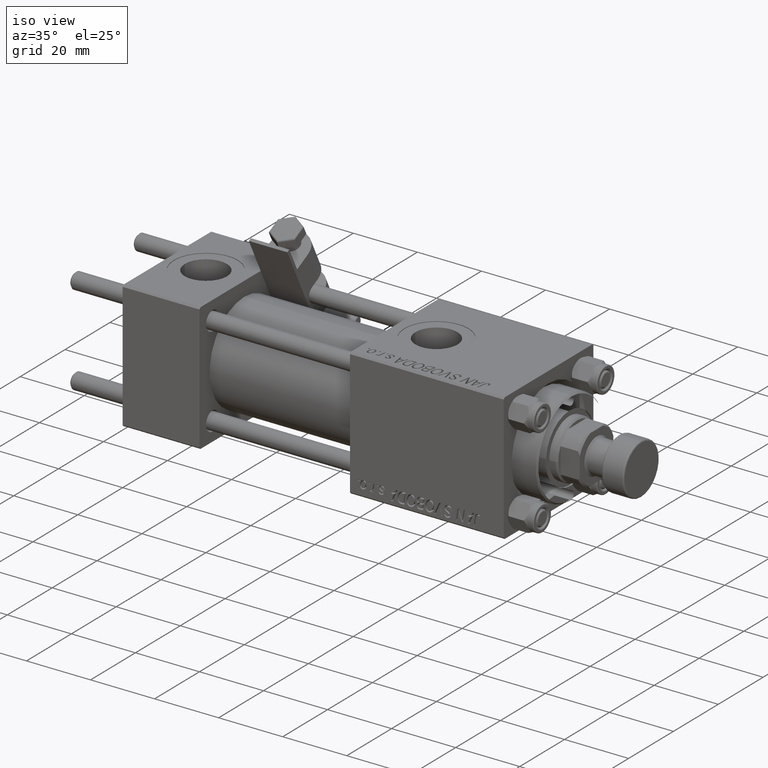
[diagram: clean part render]
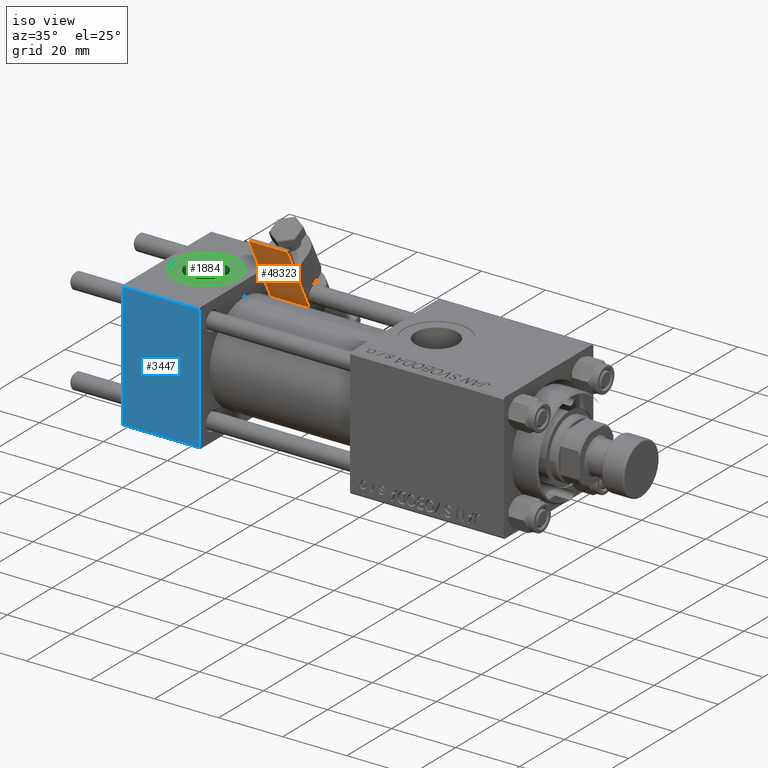
[diagram: same view with three faces highlighted in distinct colors, each labeled with its STEP entity id]
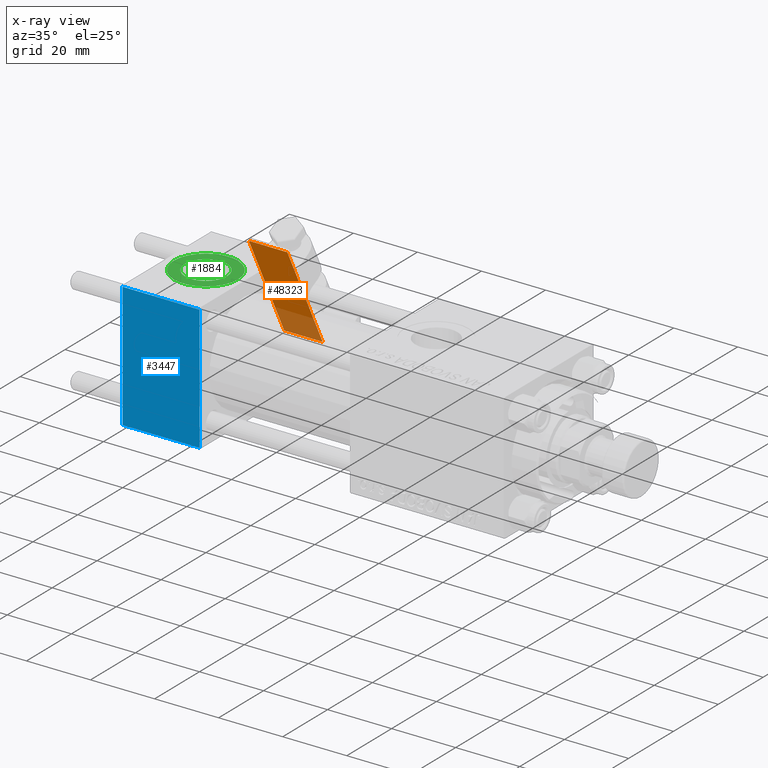
[diagram: x-ray of the same camera — body ghosted, the three highlighted faces saturated]
A machine part, iso view with three faces highlighted in distinct colors.
The next image is the same camera in x-ray (body ghosted, the three faces saturated) — at least one of them is partly hidden behind the body in this view.
Their STEP definitions:

[orange] entity #48323 — the highlighted planar face has unit normal (-0, 0.8933, 0.4495).
#1063 = EDGE_CURVE ( 'NONE', #41536, #15839, #27535, .T. ) ;
#2054 = CARTESIAN_POINT ( 'NONE',  ( -7.780000000000000249, 0.000000000000000000, 6.000000000000005329 ) ) ;
#6182 = EDGE_CURVE ( 'NONE', #25207, #41536, #8793, .T. ) ;
#8122 = PLANE ( 'NONE',  #51436 ) ;
#8300 = ORIENTED_EDGE ( 'NONE', *, *, #6182, .F. ) ;
#8793 = LINE ( 'NONE', #25190, #45680 ) ;
#10807 = LINE ( 'NONE', #43559, #45064 ) ;
#10877 = DIRECTION ( 'NONE',  ( 0.000000000000000000, 0.000000000000000000, 1.000000000000000000 ) ) ;
#11690 = EDGE_CURVE ( 'NONE', #35445, #15839, #49645, .T. ) ;
#11778 = DIRECTION ( 'NONE',  ( -1.000000000000000000, -0.000000000000000000, -0.000000000000000000 ) ) ;
#13184 = EDGE_CURVE ( 'NONE', #35445, #25207, #10807, .T. ) ;
#15187 = ORIENTED_EDGE ( 'NONE', *, *, #1063, .F. ) ;
#15839 = VERTEX_POINT ( 'NONE', #2054 ) ;
#16934 = DIRECTION ( 'NONE',  ( -1.000000000000000000, -0.000000000000000000, -0.000000000000000000 ) ) ;
#17345 = EDGE_LOOP ( 'NONE', ( #38254, #15187, #8300, #38135 ) ) ;
#18244 = VECTOR ( 'NONE', #10877, 1000.000000000000000 ) ;
#23146 = CARTESIAN_POINT ( 'NONE',  ( 27.24000000000000199, 0.000000000000000000, -6.000000000000000000 ) ) ;
#24524 = DIRECTION ( 'NONE',  ( 0.000000000000000000, -0.000000000000000000, 1.000000000000000000 ) ) ;
#25190 = CARTESIAN_POINT ( 'NONE',  ( 9.740000000000000213, 0.000000000000000000, -6.000000000000000000 ) ) ;
#25207 = VERTEX_POINT ( 'NONE', #23146 ) ;
#27199 = DIRECTION ( 'NONE',  ( 0.000000000000000000, 0.000000000000000000, -1.000000000000000000 ) ) ;
#27535 = LINE ( 'NONE', #39058, #18244 ) ;
#28801 = CARTESIAN_POINT ( 'NONE',  ( 27.24000000000000199, 0.000000000000000000, 6.000000000000005329 ) ) ;
#29338 = FACE_OUTER_BOUND ( 'NONE', #17345, .T. ) ;
#31308 = VECTOR ( 'NONE', #16934, 1000.000000000000000 ) ;
#35445 = VERTEX_POINT ( 'NONE', #28801 ) ;
#37070 = CARTESIAN_POINT ( 'NONE',  ( -7.780000000000000249, 0.000000000000000000, -6.000000000000000000 ) ) ;
#38135 = ORIENTED_EDGE ( 'NONE', *, *, #13184, .F. ) ;
#38254 = ORIENTED_EDGE ( 'NONE', *, *, #11690, .T. ) ;
#39058 = CARTESIAN_POINT ( 'NONE',  ( -7.780000000000000249, 0.000000000000000000, -6.000000000000000000 ) ) ;
#41144 = DIRECTION ( 'NONE',  ( -0.000000000000000000, 1.000000000000000000, 0.000000000000000000 ) ) ;
#41536 = VERTEX_POINT ( 'NONE', #37070 ) ;
#41661 = CARTESIAN_POINT ( 'NONE',  ( 9.740000000000000213, 0.000000000000000000, 6.000000000000005329 ) ) ;
#43559 = CARTESIAN_POINT ( 'NONE',  ( 27.24000000000000199, 0.000000000000000000, 6.000000000000005329 ) ) ;
#45064 = VECTOR ( 'NONE', #27199, 1000.000000000000000 ) ;
#45680 = VECTOR ( 'NONE', #11778, 1000.000000000000000 ) ;
#48323 = ADVANCED_FACE ( 'NONE', ( #29338 ), #8122, .F. ) ;
#49645 = LINE ( 'NONE', #50453, #31308 ) ;
#50453 = CARTESIAN_POINT ( 'NONE',  ( 9.740000000000000213, 0.000000000000000000, 6.000000000000005329 ) ) ;
#51436 = AXIS2_PLACEMENT_3D ( 'NONE', #41661, #41144, #24524 ) ;

[blue] entity #3447 — the highlighted planar face has unit normal (0, 1, 0).
#100 = CARTESIAN_POINT ( 'NONE',  ( 24.00000000000000000, -20.00000000000000355, 19.99999999999998934 ) ) ;
#353 = CARTESIAN_POINT ( 'NONE',  ( 24.00000000000000000, -20.00000000000000000, -19.49999999999999645 ) ) ;
#616 = LINE ( 'NONE', #9176, #28216 ) ;
#1008 = VERTEX_POINT ( 'NONE', #4985 ) ;
#1055 = VECTOR ( 'NONE', #23081, 1000.000000000000000 ) ;
#2842 = ORIENTED_EDGE ( 'NONE', *, *, #46889, .T. ) ;
#2933 = LINE ( 'NONE', #39435, #1055 ) ;
#3447 = ADVANCED_FACE ( 'NONE', ( #7073 ), #19947, .F. ) ;
#4231 = CARTESIAN_POINT ( 'NONE',  ( 24.00000000000000000, -20.00000000000000355, 19.49999999999998224 ) ) ;
#4899 = EDGE_CURVE ( 'NONE', #1008, #12268, #2933, .T. ) ;
#4985 = CARTESIAN_POINT ( 'NONE',  ( 0.000000000000000000, -20.00000000000000000, -19.49999999999999645 ) ) ;
#7073 = FACE_OUTER_BOUND ( 'NONE', #20876, .T. ) ;
#9176 = CARTESIAN_POINT ( 'NONE',  ( 24.00000000000000000, -20.00000000000000355, 19.49999999999998224 ) ) ;
#10638 = DIRECTION ( 'NONE',  ( 0.000000000000000000, 8.673617379884036705E-17, -1.000000000000000000 ) ) ;
#12268 = VERTEX_POINT ( 'NONE', #353 ) ;
#13238 = DIRECTION ( 'NONE',  ( 0.000000000000000000, 8.673617379884036705E-17, -1.000000000000000000 ) ) ;
#14679 = CARTESIAN_POINT ( 'NONE',  ( 0.000000000000000000, -20.00000000000000355, 19.99999999999998934 ) ) ;
#15626 = AXIS2_PLACEMENT_3D ( 'NONE', #23191, #48377, #48635 ) ;
#19947 = PLANE ( 'NONE',  #15626 ) ;
#20876 = EDGE_LOOP ( 'NONE', ( #2842, #27052, #50211, #25875 ) ) ;
#22467 = LINE ( 'NONE', #14679, #30925 ) ;
#23081 = DIRECTION ( 'NONE',  ( 1.000000000000000000, 0.000000000000000000, 0.000000000000000000 ) ) ;
#23191 = CARTESIAN_POINT ( 'NONE',  ( 24.00000000000000000, -20.00000000000000355, 19.99999999999998934 ) ) ;
#23480 = VERTEX_POINT ( 'NONE', #50141 ) ;
#24985 = EDGE_CURVE ( 'NONE', #30852, #23480, #616, .T. ) ;
#25563 = DIRECTION ( 'NONE',  ( -1.000000000000000000, 0.000000000000000000, 0.000000000000000000 ) ) ;
#25875 = ORIENTED_EDGE ( 'NONE', *, *, #24985, .T. ) ;
#27052 = ORIENTED_EDGE ( 'NONE', *, *, #4899, .T. ) ;
#28216 = VECTOR ( 'NONE', #25563, 1000.000000000000000 ) ;
#30852 = VERTEX_POINT ( 'NONE', #4231 ) ;
#30925 = VECTOR ( 'NONE', #10638, 1000.000000000000000 ) ;
#39435 = CARTESIAN_POINT ( 'NONE',  ( 24.00000000000000000, -20.00000000000000000, -19.49999999999999645 ) ) ;
#41899 = VECTOR ( 'NONE', #13238, 1000.000000000000000 ) ;
#42048 = EDGE_CURVE ( 'NONE', #30852, #12268, #49995, .T. ) ;
#46889 = EDGE_CURVE ( 'NONE', #23480, #1008, #22467, .T. ) ;
#48377 = DIRECTION ( 'NONE',  ( -0.000000000000000000, 1.000000000000000000, 8.673617379884036705E-17 ) ) ;
#48635 = DIRECTION ( 'NONE',  ( 0.000000000000000000, -8.673617379884036705E-17, 1.000000000000000000 ) ) ;
#49995 = LINE ( 'NONE', #100, #41899 ) ;
#50141 = CARTESIAN_POINT ( 'NONE',  ( 0.000000000000000000, -20.00000000000000355, 19.49999999999998224 ) ) ;
#50211 = ORIENTED_EDGE ( 'NONE', *, *, #42048, .F. ) ;

[green] entity #1884 — the highlighted planar face has unit normal (0, 0, 1).
#81 = VERTEX_POINT ( 'NONE', #24071 ) ;
#1884 = ADVANCED_FACE ( 'NONE', ( #34968, #15382 ), #47838, .T. ) ;
#2229 = VERTEX_POINT ( 'NONE', #46452 ) ;
#2852 = CARTESIAN_POINT ( 'NONE',  ( 22.00000000000000000, 1.540743955509788682E-30, 19.79999999999999716 ) ) ;
#3542 = EDGE_LOOP ( 'NONE', ( #42896, #11138 ) ) ;
#3576 = CARTESIAN_POINT ( 'NONE',  ( 2.000000000000003553, 1.224646799147354440E-15, 19.79999999999999716 ) ) ;
#4504 = AXIS2_PLACEMENT_3D ( 'NONE', #43811, #35231, #27191 ) ;
#10318 = EDGE_CURVE ( 'NONE', #17480, #30544, #46688, .T. ) ;
#10485 = ORIENTED_EDGE ( 'NONE', *, *, #15475, .F. ) ;
#10843 = DIRECTION ( 'NONE',  ( 1.000000000000000000, 0.000000000000000000, 0.000000000000000000 ) ) ;
#11138 = ORIENTED_EDGE ( 'NONE', *, *, #37301, .T. ) ;
#11223 = CARTESIAN_POINT ( 'NONE',  ( 12.00000000000000000, 1.540743955509788682E-30, 19.79999999999999716 ) ) ;
#11640 = DIRECTION ( 'NONE',  ( 0.000000000000000000, 0.000000000000000000, 1.000000000000000000 ) ) ;
#15382 = FACE_OUTER_BOUND ( 'NONE', #3542, .T. ) ;
#15475 = EDGE_CURVE ( 'NONE', #2229, #81, #19471, .T. ) ;
#16935 = AXIS2_PLACEMENT_3D ( 'NONE', #52186, #11640, #52445 ) ;
#17480 = VERTEX_POINT ( 'NONE', #2852 ) ;
#19471 = CIRCLE ( 'NONE', #37434, 6.579999999999999183 ) ;
#19524 = CIRCLE ( 'NONE', #16935, 6.579999999999999183 ) ;
#23165 = EDGE_LOOP ( 'NONE', ( #26789, #10485 ) ) ;
#24071 = CARTESIAN_POINT ( 'NONE',  ( 18.57999999999999829, 1.540743955509788682E-30, 19.79999999999999716 ) ) ;
#26789 = ORIENTED_EDGE ( 'NONE', *, *, #39398, .F. ) ;
#27191 = DIRECTION ( 'NONE',  ( 1.000000000000000000, 0.000000000000000000, -0.000000000000000000 ) ) ;
#27871 = DIRECTION ( 'NONE',  ( 1.000000000000000000, 0.000000000000000000, 0.000000000000000000 ) ) ;
#30544 = VERTEX_POINT ( 'NONE', #3576 ) ;
#31376 = CARTESIAN_POINT ( 'NONE',  ( 12.00000000000000000, 1.540743955509788682E-30, 19.79999999999999716 ) ) ;
#31645 = DIRECTION ( 'NONE',  ( 1.000000000000000000, 0.000000000000000000, 0.000000000000000000 ) ) ;
#33988 = AXIS2_PLACEMENT_3D ( 'NONE', #31376, #47730, #31645 ) ;
#34968 = FACE_BOUND ( 'NONE', #23165, .T. ) ;
#35231 = DIRECTION ( 'NONE',  ( 0.000000000000000000, 0.000000000000000000, 1.000000000000000000 ) ) ;
#35812 = DIRECTION ( 'NONE',  ( 0.000000000000000000, 0.000000000000000000, 1.000000000000000000 ) ) ;
#37301 = EDGE_CURVE ( 'NONE', #30544, #17480, #47698, .T. ) ;
#37434 = AXIS2_PLACEMENT_3D ( 'NONE', #11223, #39685, #27871 ) ;
#39398 = EDGE_CURVE ( 'NONE', #81, #2229, #19524, .T. ) ;
#39685 = DIRECTION ( 'NONE',  ( 0.000000000000000000, 0.000000000000000000, 1.000000000000000000 ) ) ;
#42386 = AXIS2_PLACEMENT_3D ( 'NONE', #47612, #35812, #10843 ) ;
#42896 = ORIENTED_EDGE ( 'NONE', *, *, #10318, .T. ) ;
#43811 = CARTESIAN_POINT ( 'NONE',  ( 12.00000000000000000, 1.540743955509788682E-30, 19.79999999999999716 ) ) ;
#46452 = CARTESIAN_POINT ( 'NONE',  ( 5.420000000000000817, 8.058175938389596335E-16, 19.79999999999999716 ) ) ;
#46688 = CIRCLE ( 'NONE', #42386, 9.999999999999998224 ) ;
#47612 = CARTESIAN_POINT ( 'NONE',  ( 12.00000000000000000, 1.540743955509788682E-30, 19.79999999999999716 ) ) ;
#47698 = CIRCLE ( 'NONE', #33988, 9.999999999999998224 ) ;
#47730 = DIRECTION ( 'NONE',  ( 0.000000000000000000, 0.000000000000000000, 1.000000000000000000 ) ) ;
#47838 = PLANE ( 'NONE',  #4504 ) ;
#52186 = CARTESIAN_POINT ( 'NONE',  ( 12.00000000000000000, 1.540743955509788682E-30, 19.79999999999999716 ) ) ;
#52445 = DIRECTION ( 'NONE',  ( 1.000000000000000000, 0.000000000000000000, 0.000000000000000000 ) ) ;